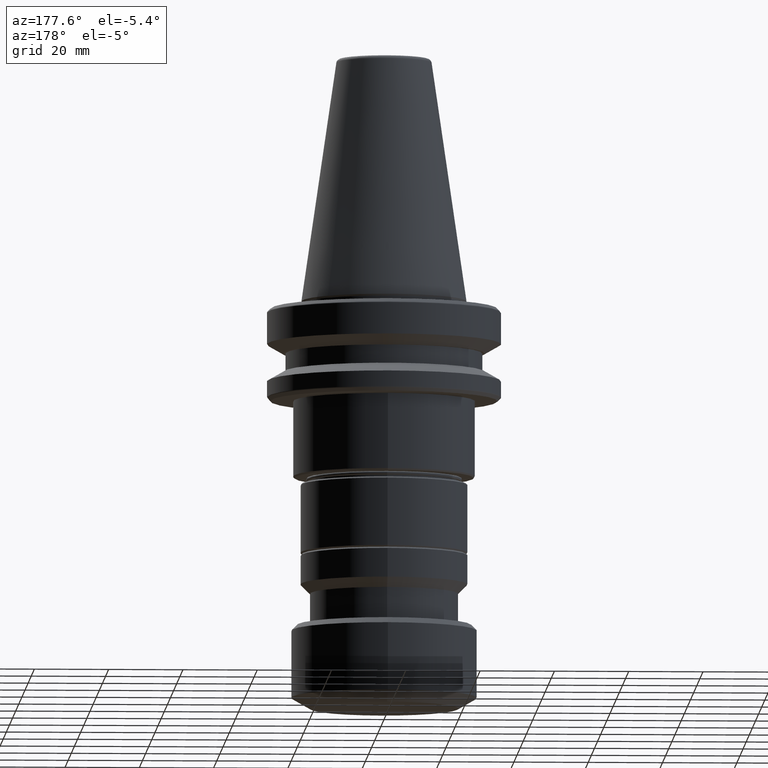
[diagram: clean part render]
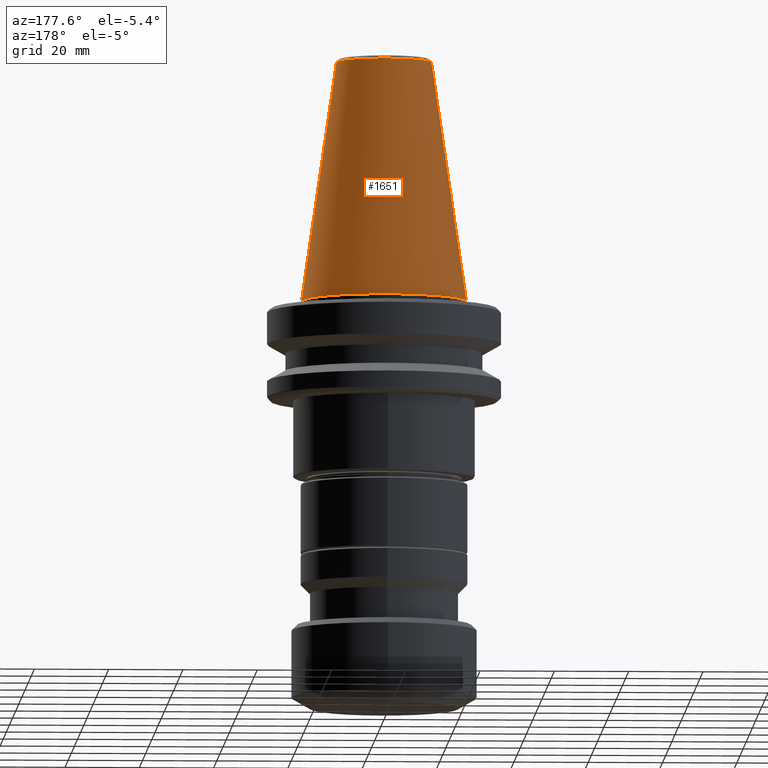
[diagram: same view with one face highlighted and labeled with its STEP entity id]
A machine part, auxiliary view. The second image highlights one B-rep face of the part: STEP entity #1651.
In plain terms, the highlighted conical surface has half-angle 8.297 deg.
Its self-contained STEP definition (entity closure, byte-faithful):
#29 = CARTESIAN_POINT ( 'NONE',  ( 12.81219950706224800, 1.569041911636107800E-015, 64.54430822726730800 ) ) ;
#40 = ORIENTED_EDGE ( 'NONE', *, *, #665, .T. ) ;
#97 = DIRECTION ( 'NONE',  ( -0.0000000000000000000, -0.0000000000000000000, 1.000000000000000000 ) ) ;
#116 = VERTEX_POINT ( 'NONE', #1855 ) ;
#177 = CARTESIAN_POINT ( 'NONE',  ( 0.0000000000000000000, 0.0000000000000000000, 64.54430822726730800 ) ) ;
#178 = LINE ( 'NONE', #284, #454 ) ;
#185 = DIRECTION ( 'NONE',  ( -1.000000000000000000, 0.0000000000000000000, 0.0000000000000000000 ) ) ;
#284 = CARTESIAN_POINT ( 'NONE',  ( -12.81219950706224800, 0.0000000000000000000, 64.54430822726730800 ) ) ;
#324 = DIRECTION ( 'NONE',  ( 0.1443082272673071000, 1.767266086135364600E-017, -0.9895327864921743500 ) ) ;
#335 = VECTOR ( 'NONE', #324, 1000.000000000000000 ) ;
#407 = CIRCLE ( 'NONE', #1195, 12.81219950706224800 ) ;
#454 = VECTOR ( 'NONE', #1673, 1000.000000000000000 ) ;
#481 = LINE ( 'NONE', #29, #335 ) ;
#483 = DIRECTION ( 'NONE',  ( 0.0000000000000000000, 0.0000000000000000000, -1.000000000000000000 ) ) ;
#550 = AXIS2_PLACEMENT_3D ( 'NONE', #177, #483, #185 ) ;
#653 = EDGE_CURVE ( 'NONE', #116, #1254, #407, .T. ) ;
#661 = EDGE_CURVE ( 'NONE', #1254, #867, #178, .T. ) ;
#665 = EDGE_CURVE ( 'NONE', #116, #1655, #481, .T. ) ;
#671 = CONICAL_SURFACE ( 'NONE', #550, 12.81219950706224800, 0.1448138465474191100 ) ;
#677 = CARTESIAN_POINT ( 'NONE',  ( 0.0000000000000000000, 0.0000000000000000000, 64.54430822726730800 ) ) ;
#853 = CIRCLE ( 'NONE', #1845, 22.22500000000000500 ) ;
#867 = VERTEX_POINT ( 'NONE', #1500 ) ;
#888 = CARTESIAN_POINT ( 'NONE',  ( 22.22500000000000500, 0.0000000000000000000, 0.0000000000000000000 ) ) ;
#932 = CARTESIAN_POINT ( 'NONE',  ( 0.0000000000000000000, 0.0000000000000000000, 0.0000000000000000000 ) ) ;
#974 = ORIENTED_EDGE ( 'NONE', *, *, #1821, .T. ) ;
#1084 = DIRECTION ( 'NONE',  ( 1.000000000000000000, 0.0000000000000000000, 0.0000000000000000000 ) ) ;
#1195 = AXIS2_PLACEMENT_3D ( 'NONE', #677, #1317, #1426 ) ;
#1254 = VERTEX_POINT ( 'NONE', #1770 ) ;
#1317 = DIRECTION ( 'NONE',  ( -0.0000000000000000000, -0.0000000000000000000, 1.000000000000000000 ) ) ;
#1340 = FACE_OUTER_BOUND ( 'NONE', #1850, .T. ) ;
#1419 = ORIENTED_EDGE ( 'NONE', *, *, #653, .F. ) ;
#1426 = DIRECTION ( 'NONE',  ( 1.000000000000000000, 0.0000000000000000000, 0.0000000000000000000 ) ) ;
#1463 = ORIENTED_EDGE ( 'NONE', *, *, #661, .F. ) ;
#1500 = CARTESIAN_POINT ( 'NONE',  ( -22.22500000000000500, 2.721777511104993200E-015, 0.0000000000000000000 ) ) ;
#1651 = ADVANCED_FACE ( 'NONE', ( #1340 ), #671, .T. ) ;
#1655 = VERTEX_POINT ( 'NONE', #888 ) ;
#1673 = DIRECTION ( 'NONE',  ( -0.1443082272673071000, 0.0000000000000000000, -0.9895327864921743500 ) ) ;
#1770 = CARTESIAN_POINT ( 'NONE',  ( -12.81219950706224800, 0.0000000000000000000, 64.54430822726730800 ) ) ;
#1821 = EDGE_CURVE ( 'NONE', #1655, #867, #853, .T. ) ;
#1845 = AXIS2_PLACEMENT_3D ( 'NONE', #932, #97, #1084 ) ;
#1850 = EDGE_LOOP ( 'NONE', ( #1419, #40, #974, #1463 ) ) ;
#1855 = CARTESIAN_POINT ( 'NONE',  ( 12.81219950706224800, 2.145409711370550300E-015, 64.54430822726730800 ) ) ;